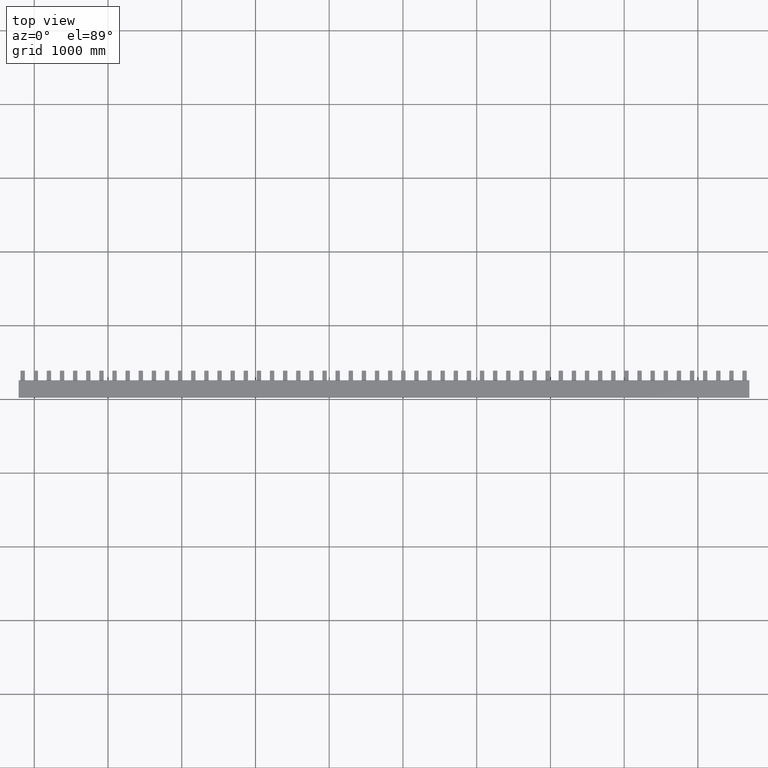
[diagram: clean part render]
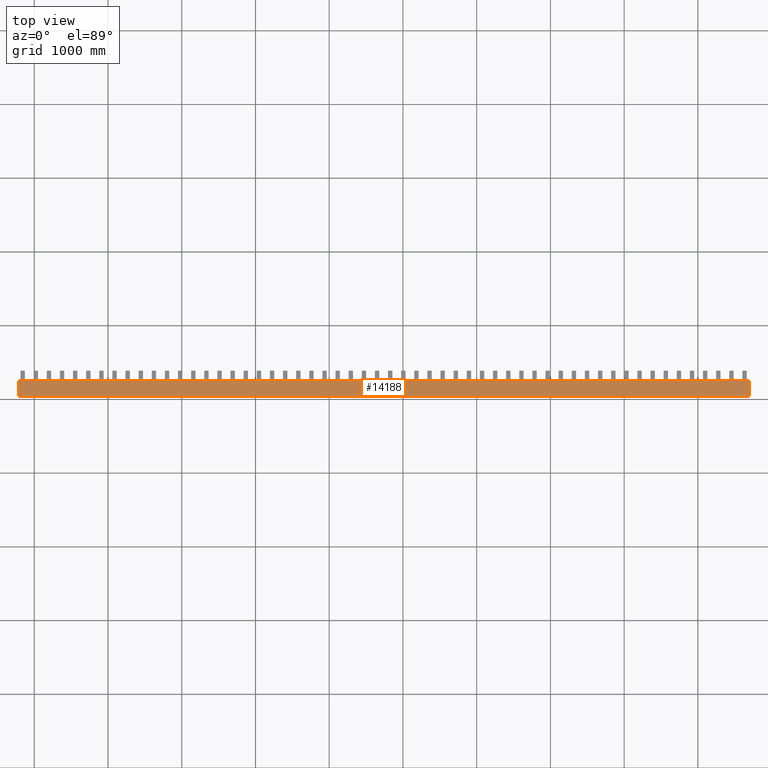
[diagram: same view with one face highlighted and labeled with its STEP entity id]
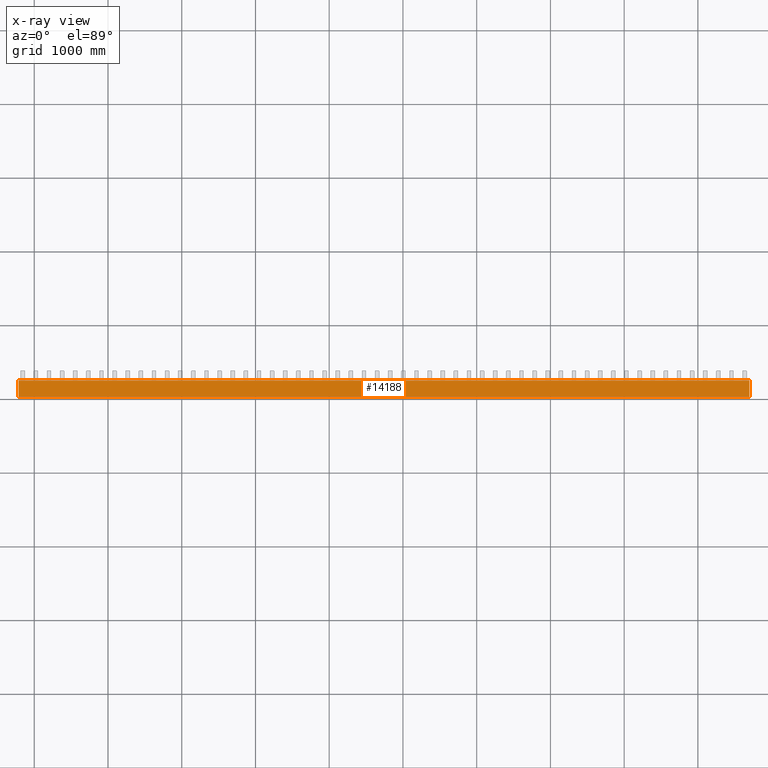
[diagram: x-ray of the same camera — body ghosted, the highlighted face saturated]
A machine part, top view. The second image highlights one B-rep face of the part: STEP entity #14188.
The next image is the same camera in x-ray: the body ghosted, the highlighted face saturated — about 0% of this face is hidden behind the body in this view.
In plain terms, the highlighted planar face has unit normal (-0, -0, 1).
Its self-contained STEP definition (entity closure, byte-faithful):
#13694=CARTESIAN_POINT('',(-211.99830538448691,32.824799420360762,385.78551975208478));
#13695=VERTEX_POINT('',#13694);
#13703=CARTESIAN_POINT('',(-211.99830538448703,249.82479942035951,385.78551975212889));
#13704=VERTEX_POINT('',#13703);
#13705=CARTESIAN_POINT('',(-211.99830538448708,249.82479942035951,385.78551975212702));
#13706=DIRECTION('',(1.047805E-015,-1.0,-1.975112E-013));
#13707=VECTOR('',#13706,216.99999999999872);
#13708=LINE('',#13705,#13707);
#13709=EDGE_CURVE('',#13704,#13695,#13708,.T.);
#14094=CARTESIAN_POINT('',(9698.0016946155156,249.82479942036946,385.78551975214737));
#14095=VERTEX_POINT('',#14094);
#14103=CARTESIAN_POINT('',(9698.0016946155156,32.824799420370702,385.78551975210473));
#14104=VERTEX_POINT('',#14103);
#14105=CARTESIAN_POINT('',(9698.0016946155156,32.824799420370702,385.7855197521053));
#14106=DIRECTION('',(0.0,1.0,1.975112E-013));
#14107=VECTOR('',#14106,216.99999999999875);
#14108=LINE('',#14105,#14107);
#14109=EDGE_CURVE('',#14104,#14095,#14108,.T.);
#14161=CARTESIAN_POINT('',(-211.99830538448703,249.82479942035965,385.7855197521277));
#14162=DIRECTION('',(1.0,0.0,0.0));
#14163=VECTOR('',#14162,9910.0000000000018);
#14164=LINE('',#14161,#14163);
#14165=EDGE_CURVE('',#13704,#14095,#14164,.T.);
#14172=CARTESIAN_POINT('',(-301.9983053844868,22.824799420358492,385.78551975208336));
#14173=DIRECTION('',(-2.012863E-015,-1.974246E-013,1.0));
#14174=DIRECTION('',(1.0,0.0,0.0));
#14175=AXIS2_PLACEMENT_3D('',#14172,#14173,#14174);
#14176=PLANE('',#14175);
#14177=ORIENTED_EDGE('',*,*,#13709,.T.);
#14178=CARTESIAN_POINT('',(9698.0016946155156,32.824799420370951,385.78551975210496));
#14179=DIRECTION('',(-1.0,0.0,0.0));
#14180=VECTOR('',#14179,9910.0);
#14181=LINE('',#14178,#14180);
#14182=EDGE_CURVE('',#14104,#13695,#14181,.T.);
#14183=ORIENTED_EDGE('',*,*,#14182,.F.);
#14184=ORIENTED_EDGE('',*,*,#14109,.T.);
#14185=ORIENTED_EDGE('',*,*,#14165,.F.);
#14186=EDGE_LOOP('',(#14177,#14183,#14184,#14185));
#14187=FACE_OUTER_BOUND('',#14186,.T.);
#14188=ADVANCED_FACE('',(#14187),#14176,.T.);